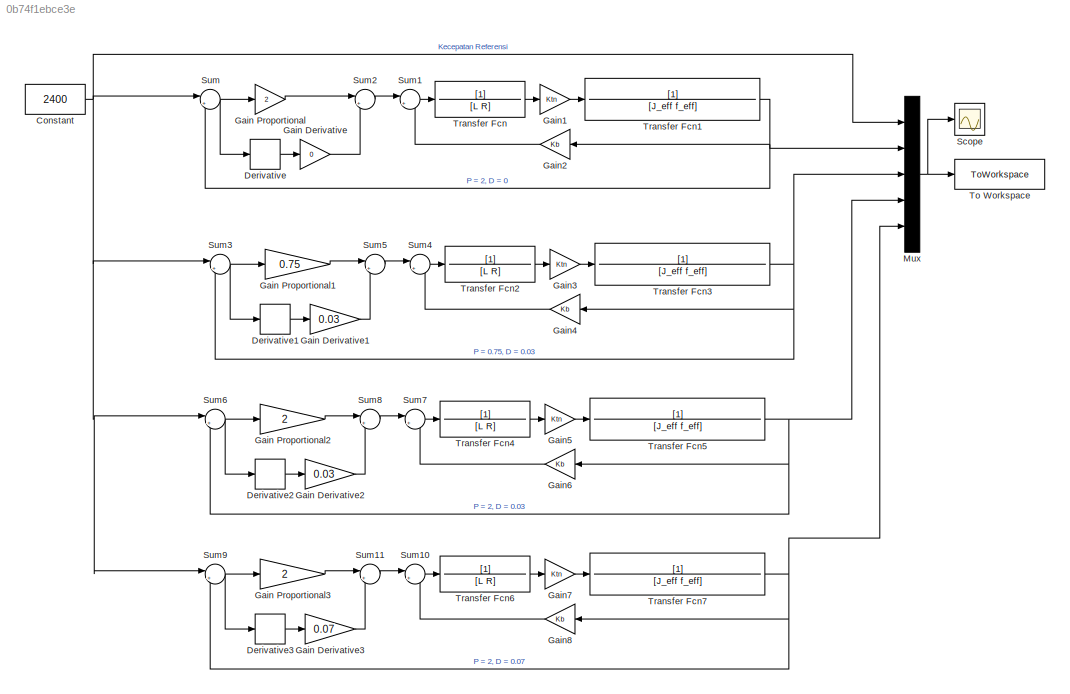
MODEL slx_0b74f1ebce3e
KIND model
CONFIG AbsTol = auto
CONFIG EnableMultiTasking = off
CONFIG FixedStep = auto
CONFIG MaxStep = auto
CONFIG MinStep = auto
CONFIG RelTol = 1e-3
CONFIG SampleTimeConstraint = Unconstrained
CONFIG SolverName = VariableStepAuto
CONFIG StartTime = 0.0
CONFIG StopTime = 1
BLOCK [Constant] Constant
  Value = 2400
BLOCK [Derivative] Derivative
BLOCK [Derivative] Derivative1
BLOCK [Derivative] Derivative2
BLOCK [Derivative] Derivative3
BLOCK [Gain] Gain Derivative
  Gain = 0
BLOCK [Gain] Gain Derivative1
  Gain = 0.03
BLOCK [Gain] Gain Derivative2
  Gain = 0.03
BLOCK [Gain] Gain Derivative3
  Gain = 0.07
BLOCK [Gain] Gain Proportional
  Gain = 2
BLOCK [Gain] Gain Proportional1
  Gain = 0.75
BLOCK [Gain] Gain Proportional2
  Gain = 2
BLOCK [Gain] Gain Proportional3
  Gain = 2
BLOCK [Gain] Gain1
  Gain = Ktn
BLOCK [Gain] Gain2
  Gain = Kb
BLOCK [Gain] Gain3
  Gain = Ktn
BLOCK [Gain] Gain4
  Gain = Kb
BLOCK [Gain] Gain5
  Gain = Ktn
BLOCK [Gain] Gain6
  Gain = Kb
BLOCK [Gain] Gain7
  Gain = Ktn
BLOCK [Gain] Gain8
  Gain = Kb
BLOCK [Mux] Mux
  DisplayOption = bar
  Inputs = 5
BLOCK [Scope] Scope
  Floating = off
  NumInputPorts = 1
  ScopeSpecificationString = Simulink.scopes.TimeScopeBlockCfg('CurrentConfiguration', extmgr.ConfigurationSet(extmgr.Configuration('Core','General UI',true),extmgr.Configuration('Core','Source UI',true),extmgr.Configuration('Sources','WiredSimulink',true),extmgr.Configuration('Visuals','Time Domain',true,'SerializedDisplays',{struct('MinYLimReal','-423.26236','MaxYLimReal','3809.36123','YLabelReal','','MinYLimMag',' 0.00000'...<+1694ch>
BLOCK [Sum] Sum
  Inputs = |+-
BLOCK [Sum] Sum1
  Inputs = |+-
BLOCK [Sum] Sum10
  Inputs = |+-
BLOCK [Sum] Sum11
  Inputs = |++
BLOCK [Sum] Sum2
  Inputs = |++
BLOCK [Sum] Sum3
  Inputs = |+-
BLOCK [Sum] Sum4
  Inputs = |+-
BLOCK [Sum] Sum5
  Inputs = |++
BLOCK [Sum] Sum6
  Inputs = |+-
BLOCK [Sum] Sum7
  Inputs = |+-
BLOCK [Sum] Sum8
  Inputs = |++
BLOCK [Sum] Sum9
  Inputs = |+-
BLOCK [ToWorkspace] To Workspace
  FixptAsFi = on
  MaxDataPoints = inf
  SampleTime = -1
  SaveFormat = Timeseries
  VariableName = DC
BLOCK [TransferFcn] Transfer Fcn
  Denominator = [L R]
BLOCK [TransferFcn] Transfer Fcn1
  Denominator = [J_eff f_eff]
BLOCK [TransferFcn] Transfer Fcn2
  Denominator = [L R]
BLOCK [TransferFcn] Transfer Fcn3
  Denominator = [J_eff f_eff]
BLOCK [TransferFcn] Transfer Fcn4
  Denominator = [L R]
BLOCK [TransferFcn] Transfer Fcn5
  Denominator = [J_eff f_eff]
BLOCK [TransferFcn] Transfer Fcn6
  Denominator = [L R]
BLOCK [TransferFcn] Transfer Fcn7
  Denominator = [J_eff f_eff]
NET Constant:1 -> Mux:1, Sum3:1, Sum6:1, Sum9:1, Sum:1
LINE Derivative1:1 -> Gain Derivative1:1
LINE Derivative2:1 -> Gain Derivative2:1
LINE Derivative3:1 -> Gain Derivative3:1
LINE Derivative:1 -> Gain Derivative:1
LINE Gain Derivative1:1 -> Sum5:2
LINE Gain Derivative2:1 -> Sum8:2
LINE Gain Derivative3:1 -> Sum11:2
LINE Gain Derivative:1 -> Sum2:2
LINE Gain Proportional1:1 -> Sum5:1
LINE Gain Proportional2:1 -> Sum8:1
LINE Gain Proportional3:1 -> Sum11:1
LINE Gain Proportional:1 -> Sum2:1
LINE Gain1:1 -> Transfer Fcn1:1
LINE Gain2:1 -> Sum1:2
LINE Gain3:1 -> Transfer Fcn3:1
LINE Gain4:1 -> Sum4:2
LINE Gain5:1 -> Transfer Fcn5:1
LINE Gain6:1 -> Sum7:2
LINE Gain7:1 -> Transfer Fcn7:1
LINE Gain8:1 -> Sum10:2
NET Mux:1 -> Scope:1, To Workspace:1
LINE Sum10:1 -> Transfer Fcn6:1
LINE Sum11:1 -> Sum10:1
LINE Sum1:1 -> Transfer Fcn:1
LINE Sum2:1 -> Sum1:1
NET Sum3:1 -> Derivative1:1, Gain Proportional1:1
LINE Sum4:1 -> Transfer Fcn2:1
LINE Sum5:1 -> Sum4:1
NET Sum6:1 -> Derivative2:1, Gain Proportional2:1
LINE Sum7:1 -> Transfer Fcn4:1
LINE Sum8:1 -> Sum7:1
NET Sum9:1 -> Derivative3:1, Gain Proportional3:1
NET Sum:1 -> Derivative:1, Gain Proportional:1
NET Transfer Fcn1:1 -> Gain2:1, Mux:2, Sum:2
LINE Transfer Fcn2:1 -> Gain3:1
NET Transfer Fcn3:1 -> Gain4:1, Mux:3, Sum3:2
LINE Transfer Fcn4:1 -> Gain5:1
NET Transfer Fcn5:1 -> Gain6:1, Mux:4, Sum6:2
LINE Transfer Fcn6:1 -> Gain7:1
NET Transfer Fcn7:1 -> Gain8:1, Mux:5, Sum9:2
LINE Transfer Fcn:1 -> Gain1:1
note: NET lines group one-source signal fan-out (src -> all destinations, sorted); 1:1 wires keep LINE
